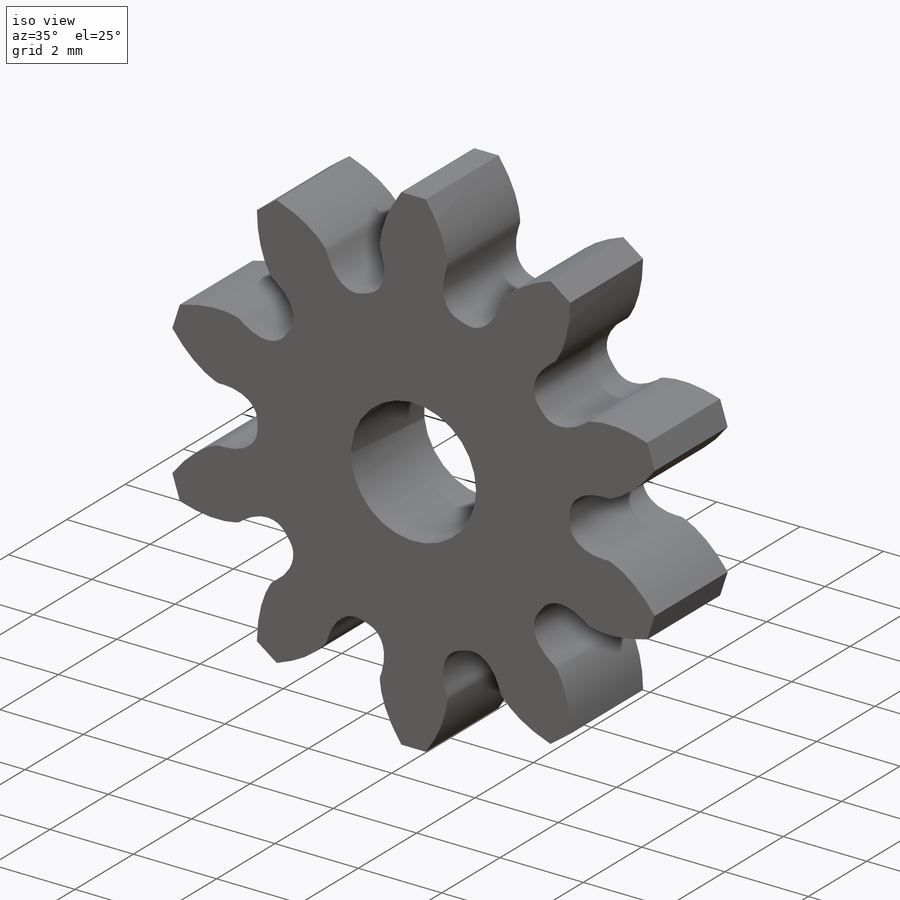
[diagram: iso view]
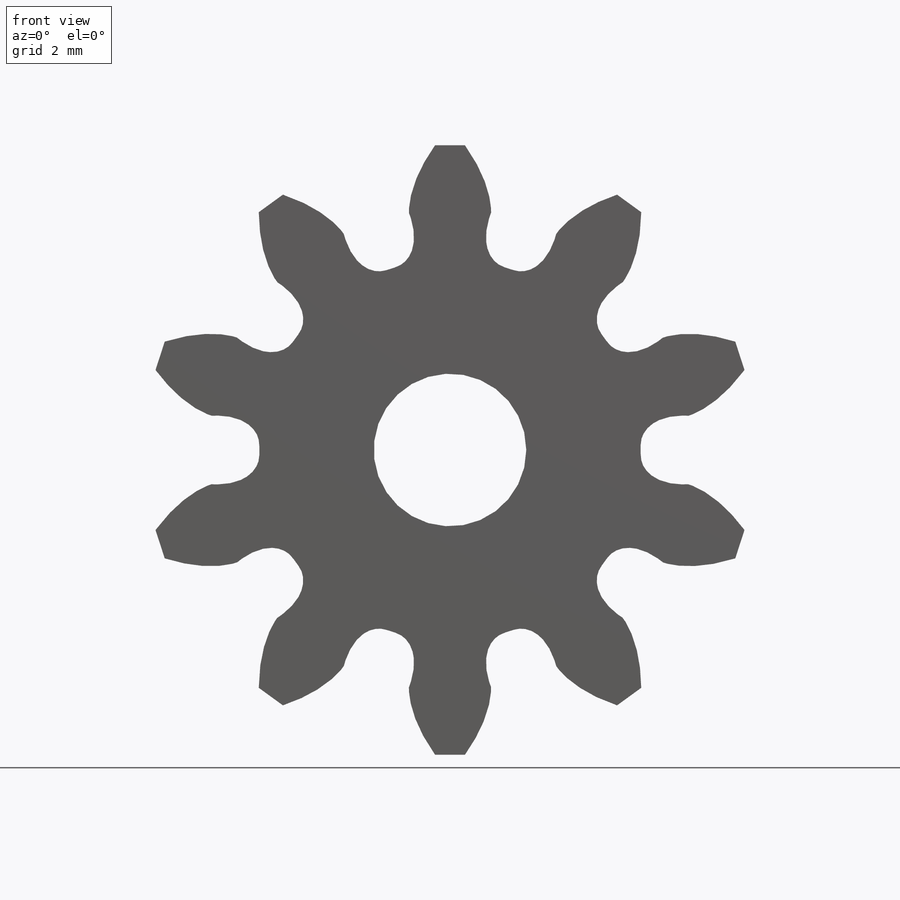
[diagram: front view]
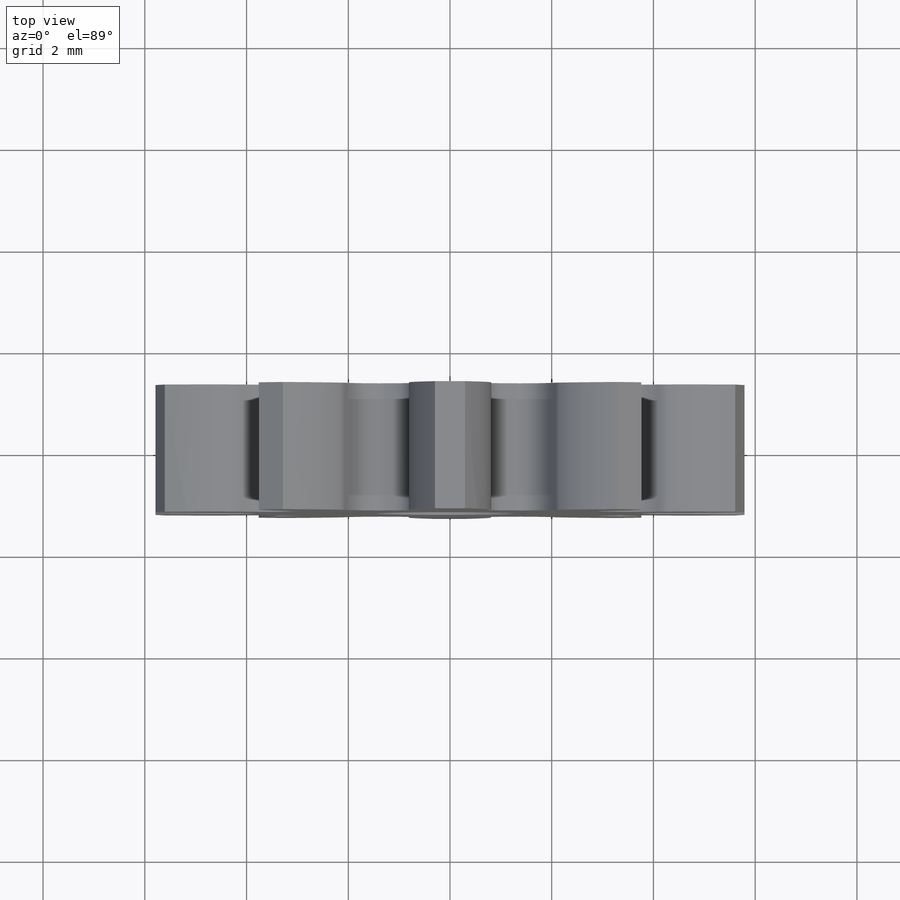
[diagram: top view]
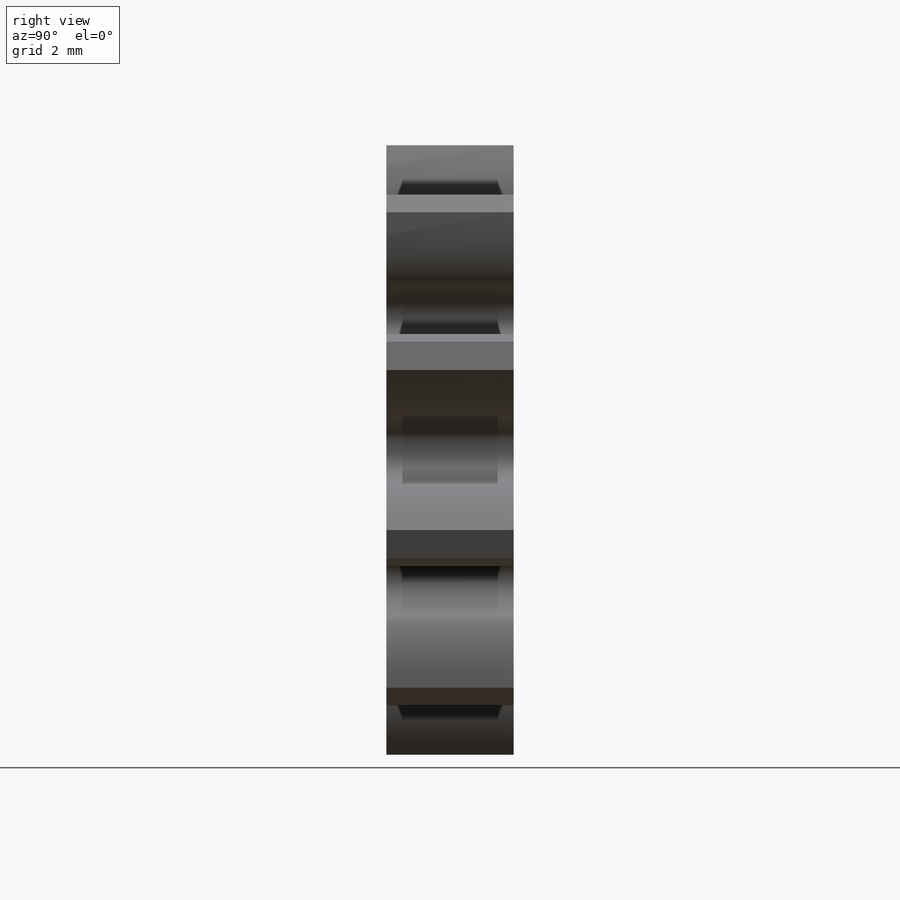
[diagram: right view]
SOLIDWORKS PART (.sldprt)
format: sldprt  version: not decoded by parser v0  size: 247,296 bytes
history: native  units: mm
features: sketch x5, material x1, revolve x1, cut_extrude x1, pattern_circular x1, cut_revolve x1 (+12 scaffold rows collapsed)
feature tree (22):
  scaffold x12  (default folders/planes/origin — collapsed)
  material  "Material <not specified>"
  sketch  "SketchRevolvePlanet_Revolving_Follower01"  dims[Side1=1.25mm OutsideRadius=6.0mm Side2=1.25mm]
  revolve  "Planet_Revolving_Follower01"  Angle=360deg
  sketch  "SketchToothPlanet_Revolving_Follower01"
  cut_extrude  "ToothExtrudeCutPlanet_Revolving_Follower01"  [1 undecoded]
  pattern_circular  "PatternPlanet_Revolving_Follower01"  Count=10  [1 undecoded]
  sketch  "BoreRevolveSketch"  dims[BoreSide1=1.75mm TaperSide1=1.5mm BoreSide2=1.75mm TaperSide2=1.5mm]
  cut_revolve  "BoreRevolveCut"  [1 undecoded]
  sketch  "KeywaySketch"
  sketch  "AuxiliarySketchPlanet_Revolving_Follower01"  dims[PitchDiameter=10.0mm BaseDiameter=~9.396926mm FormDiameter=~9.786858mm MajorDiameter=12.0mm MinorDiameter=7.5mm]
decode coverage: 5 of 9 modeling features carry decoded parameters
note: ~ marks probable driven/reference dimensions
note: 3 parameter values undecoded
note: suppression state not decoded; provenance and decode notes live in map.json
